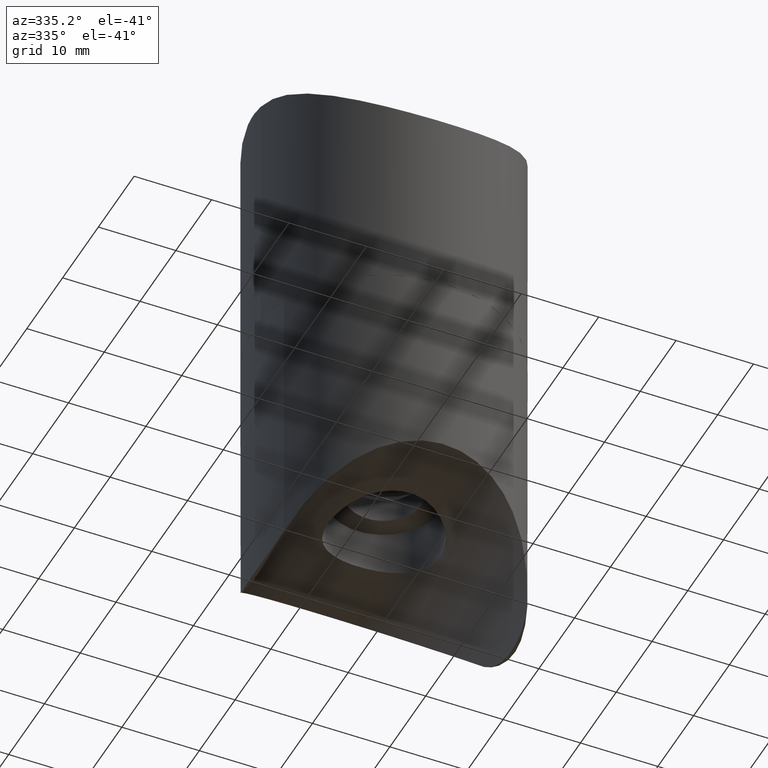
[diagram: clean part render]
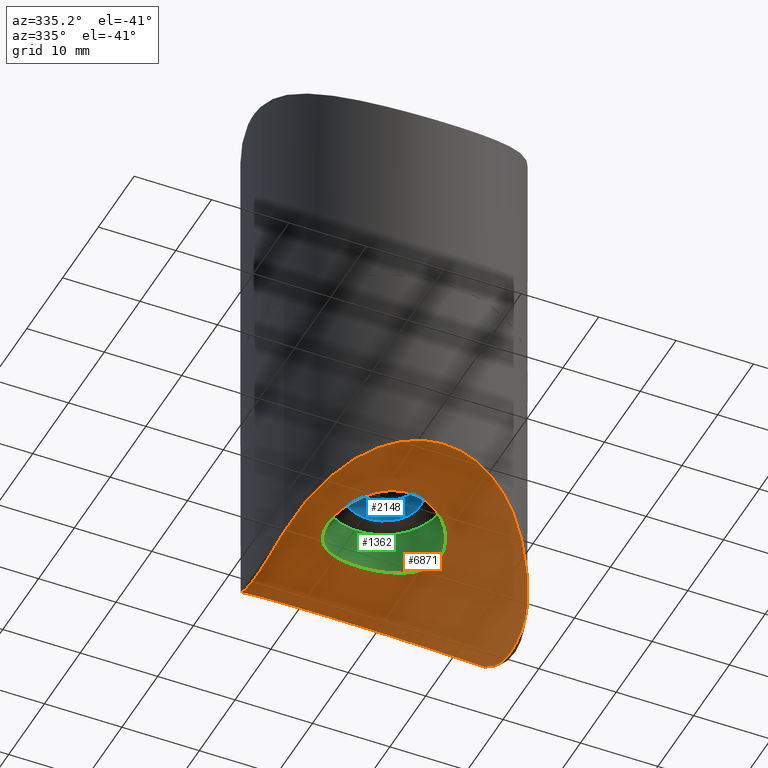
[diagram: same view with three faces highlighted in distinct colors, each labeled with its STEP entity id]
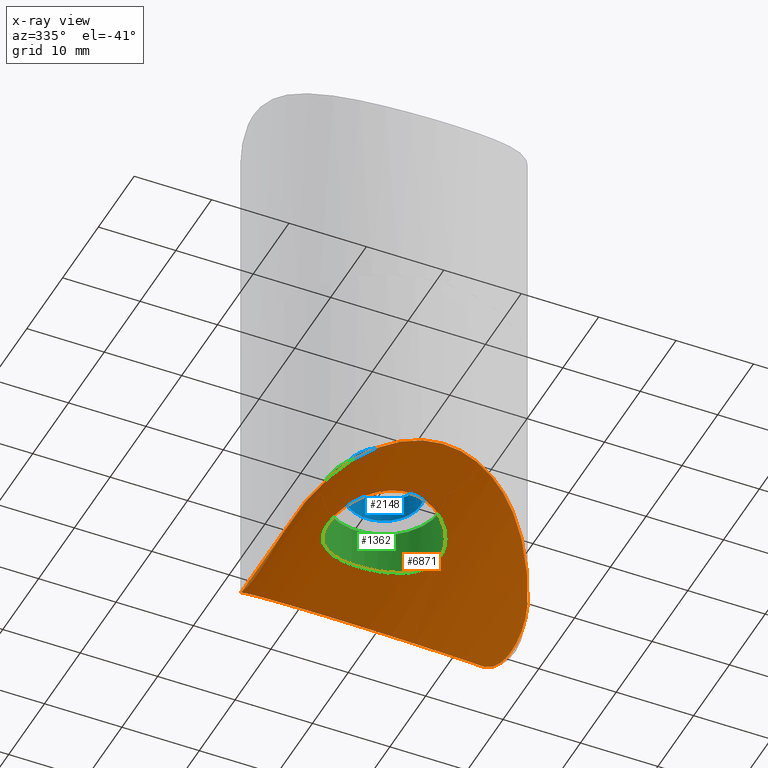
[diagram: x-ray of the same camera — body ghosted, the three highlighted faces saturated]
A machine part, auxiliary view with three faces highlighted in distinct colors.
The next image is the same camera in x-ray (body ghosted, the three faces saturated) — at least one of them is partly hidden behind the body in this view.
Their STEP definitions:

[orange] entity #6871 — the highlighted cylindrical surface (partial cylindrical patch) has radius 16.85 mm, axis along (0, -1, 0).
#34 = EDGE_LOOP ( 'NONE', ( #11539 ) ) ;
#48 = CARTESIAN_POINT ( 'NONE',  ( -4.796089520777968573, -5.457012219152863608, 25.69324742014698515 ) ) ;
#300 = CARTESIAN_POINT ( 'NONE',  ( -16.34617337419252081, -2.186723762992183406, 37.75917687425171465 ) ) ;
#396 = CARTESIAN_POINT ( 'NONE',  ( -16.34671092163666728, 2.177982999858383728, 37.76133432077322993 ) ) ;
#620 = EDGE_CURVE ( 'NONE', #7857, #10049, #14077, .T. ) ;
#860 = CARTESIAN_POINT ( 'NONE',  ( 3.649548190561970884, -6.282308658684769398, 25.39499595040027558 ) ) ;
#961 = CARTESIAN_POINT ( 'NONE',  ( 0.4712565622534001797, 7.250465984549375520, 24.99979950227553260 ) ) ;
#1007 = CARTESIAN_POINT ( 'NONE',  ( -6.275687458722897460, 3.637878653542161889, 26.21181409391473593 ) ) ;
#1050 = CARTESIAN_POINT ( 'NONE',  ( -6.495672709179138415, -3.228703092257241281, 26.30190133129487862 ) ) ;
#1102 = CARTESIAN_POINT ( 'NONE',  ( -6.271749419596720720, -3.644646323103835517, 26.21023352558124486 ) ) ;
#1144 = CARTESIAN_POINT ( 'NONE',  ( -7.009997843411294838, -1.911926243447772400, 26.52702400991228870 ) ) ;
#1455 = CARTESIAN_POINT ( 'NONE',  ( -16.39325967083188118, 1.096040324734796290, 37.95215670444287781 ) ) ;
#1542 = CARTESIAN_POINT ( 'NONE',  ( -16.14277968287617071, 4.237859515110637965, 37.01111241047244960 ) ) ;
#1804 = AXIS2_PLACEMENT_3D ( 'NONE', #7230, #13849, #8444 ) ;
#1849 = VERTEX_POINT ( 'NONE', #9237 ) ;
#1890 = B_SPLINE_CURVE_WITH_KNOTS ( 'NONE', 3,
 ( #7390, #3035, #9612, #4179, #4088, #7436, #10772, #2891, #11839, #4129, #11923, #6358, #14104, #7488, #9515, #860, #5494, #6536, #13121, #7769, #3217, #13221, #5546, #14284, #9888, #9938, #7725, #4412, #2149, #3256, #6588, #14192, #48, #2048, #2010, #4365, #1102, #1050, #11042, #6496, #1144, #12105, #7678, #9751, #12157, #7575, #9833, #11004, #8777, #10959, #13262, #1007, #5630, #8827, #8739, #4323, #6641, #9793, #2190, #3127, #3306, #12022, #10859, #4232, #2102, #11973, #5348, #961, #13081, #6459, #8689, #3175, #10911, #4271, #5398, #12059, #14244, #7624, #5449, #13169, #3496, #7969, #8967, #4655, #4610, #4567, #5737, #6789 ),
 .UNSPECIFIED., .T., .F.,
 ( 4, 2, 2, 2, 2, 2, 2, 2, 2, 2, 2, 2, 2, 2, 2, 2, 2, 2, 2, 2, 2, 2, 2, 2, 2, 2, 2, 2, 2, 2, 2, 2, 2, 2, 2, 2, 2, 2, 2, 2, 2, 2, 2, 4 ),
 ( 0.000000000000000000, 0.001433644577314001703, 0.002150466865971002988, 0.002867289154628002972, 0.004300933731942003374, 0.005017756020599004226, 0.005734578309256005077, 0.007168222886570008515, 0.008601867463884013687, 0.009318689752541015406, 0.01003551204119801539, 0.01146915661851201883, 0.01218597890716902055, 0.01290280119582602053, 0.01433644577314002223, 0.01577009035045402394, 0.01720373492776802737, 0.01863737950508203081, 0.01935420179373903080, 0.02007102408239603078, 0.02150466865971003075, 0.02293831323702403419, 0.02365513552568103417, 0.02437195781433803415, 0.02580560239165203065, 0.02652242468030903411, 0.02723924696896603409, 0.02795606925762303407, 0.02867289154628003406, 0.03010653612359403750, 0.03154018070090804093, 0.03297382527822204090, 0.03369064756687904089, 0.03440746985553604781, 0.03584111443285004084, 0.03727475901016404081, 0.03870840358747803384, 0.04014204816479203380, 0.04085887045344903379, 0.04157569274210603377, 0.04300933731942004068, 0.04444298189673404759, 0.04515980418539104757, 0.04587662647404804755 ),
 .UNSPECIFIED. ) ;
#2010 = CARTESIAN_POINT ( 'NONE',  ( -5.754487810619608901, -4.435106019776030806, 26.01057218544482197 ) ) ;
#2026 = CARTESIAN_POINT ( 'NONE',  ( 15.96868808927679240, 5.184551427105573929, 36.46444687707303700 ) ) ;
#2048 = CARTESIAN_POINT ( 'NONE',  ( -5.457786858323832035, -4.795207989275075633, 25.90460282002952397 ) ) ;
#2102 = CARTESIAN_POINT ( 'NONE',  ( -0.9659986221736255319, 7.189405491579163865, 25.02599706087747222 ) ) ;
#2149 = CARTESIAN_POINT ( 'NONE',  ( -2.349490466729712512, -6.875414876886437376, 25.15859798401249492 ) ) ;
#2164 = CARTESIAN_POINT ( 'NONE',  ( 15.79625609145370468, -5.834244477677396290, 35.98193947469485465 ) ) ;
#2190 = CARTESIAN_POINT ( 'NONE',  ( -4.437796910308075660, 5.752261843298133392, 25.58995173191253159 ) ) ;
#2249 = CARTESIAN_POINT ( 'NONE',  ( -15.73081969632409916, 6.038527277552182326, 35.81147272244751889 ) ) ;
#2427 = ORIENTED_EDGE ( 'NONE', *, *, #13161, .F. ) ;
#2453 = FACE_OUTER_BOUND ( 'NONE', #9223, .T. ) ;
#2458 = CARTESIAN_POINT ( 'NONE',  ( -15.85567318817836657, 5.621287676634283415, 36.14499305166327048 ) ) ;
#2707 = CARTESIAN_POINT ( 'NONE',  ( 9.163197427450773702, -23.14767939304750399, 18.70232060695236243 ) ) ;
#2891 = CARTESIAN_POINT ( 'NONE',  ( 6.506850746331284796, -3.232309269541051133, 26.30577292806481537 ) ) ;
#3035 = CARTESIAN_POINT ( 'NONE',  ( 7.250000000000000000, -0.4853044915254272618, 26.63947732653461031 ) ) ;
#3127 = CARTESIAN_POINT ( 'NONE',  ( -3.659509500026499662, 6.276188967057899859, 25.39730413224353711 ) ) ;
#3150 = CARTESIAN_POINT ( 'NONE',  ( 15.73081969632404409, 6.038527277552358186, 35.81147272244737678 ) ) ;
#3175 = CARTESIAN_POINT ( 'NONE',  ( 3.227097637635085281, 6.509461846557844211, 25.30596129321765986 ) ) ;
#3189 = CARTESIAN_POINT ( 'NONE',  ( 16.23403106582334843, 3.489175324651175636, 37.33466334103852091 ) ) ;
#3217 = CARTESIAN_POINT ( 'NONE',  ( 1.667678265546694849, -7.059650328721986057, 25.08107561895065274 ) ) ;
#3256 = CARTESIAN_POINT ( 'NONE',  ( -3.232678530711888154, -6.507013500803539685, 25.30694114652190407 ) ) ;
#3306 = CARTESIAN_POINT ( 'NONE',  ( -3.236524067846665353, 6.504761240615182238, 25.30781549788776275 ) ) ;
#3324 = CYLINDRICAL_SURFACE ( 'NONE', #1804, 16.84999999999991971 ) ;
#3483 = CARTESIAN_POINT ( 'NONE',  ( 7.250000000000000000, 0.000000000000000000, 26.63947732653462097 ) ) ;
#3496 = CARTESIAN_POINT ( 'NONE',  ( 6.505347094623084914, 3.235870692881694932, 26.30512370645515929 ) ) ;
#3648 = CARTESIAN_POINT ( 'NONE',  ( -16.09802337612861223, -4.482162366973217793, 36.87041027646467484 ) ) ;
#4088 = CARTESIAN_POINT ( 'NONE',  ( 7.002628067825626523, -1.892901412169223807, 26.52382576842777340 ) ) ;
#4129 = CARTESIAN_POINT ( 'NONE',  ( 5.890442141657539210, -4.233289882853278563, 26.06250676569466052 ) ) ;
#4147 = CARTESIAN_POINT ( 'NONE',  ( 16.40141839169812599, 0.5535371559063891889, 37.98779848673070347 ) ) ;
#4179 = CARTESIAN_POINT ( 'NONE',  ( 7.061034692050175643, -1.661628961916935543, 26.55075274866290513 ) ) ;
#4232 = CARTESIAN_POINT ( 'NONE',  ( -1.206220008662660881, 7.152956514648707298, 25.04158154498436417 ) ) ;
#4247 = CARTESIAN_POINT ( 'NONE',  ( 16.40426520276237810, 0.2756780713549813466, 37.99998920033139882 ) ) ;
#4271 = CARTESIAN_POINT ( 'NONE',  ( 4.431519699493742692, 5.757206800468973817, 25.58820458345207527 ) ) ;
#4323 = CARTESIAN_POINT ( 'NONE',  ( -5.456315597336299561, 4.779773658194063302, 25.90710032310381195 ) ) ;
#4329 = VERTEX_POINT ( 'NONE', #13818 ) ;
#4342 = CARTESIAN_POINT ( 'NONE',  ( 16.40427280154884571, -0.5502477362913487102, 38.00002157761129240 ) ) ;
#4365 = CARTESIAN_POINT ( 'NONE',  ( -6.148551095359947816, -3.848800887296427220, 26.16122709414393910 ) ) ;
#4412 = CARTESIAN_POINT ( 'NONE',  ( -1.892428574287349452, -7.014903934195329427, 25.10002499094510497 ) ) ;
#4567 = CARTESIAN_POINT ( 'NONE',  ( 7.237684138109775844, 0.4863419437966951531, 26.63358971400820252 ) ) ;
#4610 = CARTESIAN_POINT ( 'NONE',  ( 7.189398415431847766, 0.9659972016149133145, 26.61071641779482277 ) ) ;
#4627 = CARTESIAN_POINT ( 'NONE',  ( -15.73081969632409916, 6.038527277552182326, 35.81147272244751889 ) ) ;
#4655 = CARTESIAN_POINT ( 'NONE',  ( 7.153553893937991681, 1.202382867433838376, 26.59379261804080841 ) ) ;
#4773 = CARTESIAN_POINT ( 'NONE',  ( -16.31087275629818834, -2.714783333929912779, 37.61726458571324372 ) ) ;
#5321 = CARTESIAN_POINT ( 'NONE',  ( 16.39325967083187763, -1.096040324734795401, 37.95215670444287070 ) ) ;
#5348 = CARTESIAN_POINT ( 'NONE',  ( -0.2463010454514872882, 7.249761770579302045, 25.00010250223278518 ) ) ;
#5398 = CARTESIAN_POINT ( 'NONE',  ( 4.792961786844781358, 5.460023489855130308, 25.69226896290999207 ) ) ;
#5418 = CARTESIAN_POINT ( 'NONE',  ( 15.85567318817836657, -5.621287676634284303, 36.14499305166326337 ) ) ;
#5449 = CARTESIAN_POINT ( 'NONE',  ( 5.889366731775143471, 4.234684075643424528, 26.06211442045812277 ) ) ;
#5494 = CARTESIAN_POINT ( 'NONE',  ( 3.235647069445171109, -6.505055102152129898, 25.30769353588122783 ) ) ;
#5546 = CARTESIAN_POINT ( 'NONE',  ( 0.4891137974550371359, -7.249375180610590164, 25.00026883902154751 ) ) ;
#5630 = CARTESIAN_POINT ( 'NONE',  ( -6.154477086918458184, 3.839248637186954305, 26.16355981611122417 ) ) ;
#5737 = CARTESIAN_POINT ( 'NONE',  ( 7.250000000000005329, 0.2426522457627136586, 26.63947732653462808 ) ) ;
#5759 = CARTESIAN_POINT ( 'NONE',  ( -16.40426520276237810, -0.2756780713549795148, 37.99998920033139171 ) ) ;
#5807 = CARTESIAN_POINT ( 'NONE',  ( -16.38987835012895289, -1.104764068292364509, 37.93911602618955925 ) ) ;
#5850 = CARTESIAN_POINT ( 'NONE',  ( -16.31062374438883111, 2.717289763587819262, 37.61634901753014759 ) ) ;
#5892 = CARTESIAN_POINT ( 'NONE',  ( -16.20866886444277810, 3.744772514468985847, 37.24138836359229288 ) ) ;
#5937 = CARTESIAN_POINT ( 'NONE',  ( 15.73081969632404409, 6.038527277552358186, 35.81147272244737678 ) ) ;
#6358 = CARTESIAN_POINT ( 'NONE',  ( 5.450504586210820790, -4.786396852793730616, 25.90511090649448533 ) ) ;
#6379 = EDGE_CURVE ( 'NONE', #1849, #10049, #7471, .T. ) ;
#6425 = CARTESIAN_POINT ( 'NONE',  ( 16.01274988342849426, -4.945870762627916584, 36.60264272044926770 ) ) ;
#6459 = CARTESIAN_POINT ( 'NONE',  ( 1.896853463475635326, 7.014137210544922674, 25.10035122528823948 ) ) ;
#6496 = CARTESIAN_POINT ( 'NONE',  ( -6.869696446962266556, -2.364629918321219382, 26.46270023103839009 ) ) ;
#6536 = CARTESIAN_POINT ( 'NONE',  ( 2.582786677651947471, -6.778449412495069382, 25.19766032188088900 ) ) ;
#6537 = EDGE_CURVE ( 'NONE', #7857, #4329, #7277, .T. ) ;
#6588 = CARTESIAN_POINT ( 'NONE',  ( -3.647523231461770710, -6.283216967721328317, 25.39461716155350857 ) ) ;
#6641 = CARTESIAN_POINT ( 'NONE',  ( -5.297207865788604586, 4.955550704987950361, 25.85335772755153982 ) ) ;
#6678 = EDGE_CURVE ( 'NONE', #13434, #13434, #1890, .T. ) ;
#6789 = CARTESIAN_POINT ( 'NONE',  ( 7.250000000000004441, 5.421010862427522170E-17, 26.63947732653462097 ) ) ;
#6871 = ADVANCED_FACE ( 'NONE', ( #9388, #2453 ), #3324, .F. ) ;
#6951 = CARTESIAN_POINT ( 'NONE',  ( -16.13624633480248605, -4.241177966405510702, 36.99627346544411921 ) ) ;
#6977 =( BOUNDED_CURVE ( )  B_SPLINE_CURVE ( 3, ( #7161, #2707, #10463, #11608 ),
 .UNSPECIFIED., .F., .T. ) 
 B_SPLINE_CURVE_WITH_KNOTS ( ( 4, 4 ),
 ( 5.078909860511432228, 7.487460753847730466 ),
 .UNSPECIFIED. ) 
 CURVE ( )  GEOMETRIC_REPRESENTATION_ITEM ( )  RATIONAL_B_SPLINE_CURVE ( ( 1.000000000000000000, 0.5722463809120582612, 0.5722463809120582612, 1.000000000000000000 ) ) 
 REPRESENTATION_ITEM ( '' )  );
#7118 = CARTESIAN_POINT ( 'NONE',  ( -15.73081969632409916, 6.038527277552182326, 35.81147272244751889 ) ) ;
#7161 = CARTESIAN_POINT ( 'NONE',  ( 15.73081969632409916, -6.038527277552182326, 35.81147272244751889 ) ) ;
#7230 = CARTESIAN_POINT ( 'NONE',  ( 0.000000000000000000, -16.85000000000000142, 41.84999999999971010 ) ) ;
#7277 = B_SPLINE_CURVE_WITH_KNOTS ( 'NONE', 3,
 ( #4627, #9084, #2458, #9224, #10249, #1542, #5892, #5850, #396, #1455, #10299, #5759, #9274, #5807, #12471, #300, #4773, #13581, #11457, #6951, #3648, #11403, #8129, #13623 ),
 .UNSPECIFIED., .F., .F.,
 ( 4, 2, 2, 2, 2, 2, 2, 2, 2, 2, 2, 4 ),
 ( 0.001766015150703498411, 0.002587557519209144740, 0.003409099887714791069, 0.005052184624726084594, 0.006695269361737378987, 0.008338354098748673379, 0.009159896467254319274, 0.009981438835759966904, 0.01162452357277126563, 0.01244606594127691326, 0.01326760830978256089, 0.01491069304679385268 ),
 .UNSPECIFIED. ) ;
#7390 = CARTESIAN_POINT ( 'NONE',  ( 7.250000000000004441, 5.421010862427522170E-17, 26.63947732653462097 ) ) ;
#7436 = CARTESIAN_POINT ( 'NONE',  ( 6.862414628211297440, -2.350987257090756621, 26.46053341069550413 ) ) ;
#7471 = B_SPLINE_CURVE_WITH_KNOTS ( 'NONE', 3,
 ( #8755, #2164, #5418, #10977, #6425, #10790, #14119, #10834, #11942, #5321, #4342, #4247, #4147, #12075, #14214, #13055, #9808, #3189, #7548, #8656, #13139, #2026, #9768, #3150 ),
 .UNSPECIFIED., .F., .F.,
 ( 4, 2, 2, 2, 2, 2, 2, 2, 2, 2, 2, 4 ),
 ( 0.001766015150703499062, 0.002587557519209145174, 0.003409099887714791069, 0.005052184624726084594, 0.006695269361737378119, 0.008338354098748671644, 0.009159896467254319274, 0.009981438835759965170, 0.01162452357277126216, 0.01244606594127691326, 0.01326760830978256089, 0.01491069304679385615 ),
 .UNSPECIFIED. ) ;
#7488 = CARTESIAN_POINT ( 'NONE',  ( 4.798716551207513170, -5.454592940747837737, 25.69404991863361332 ) ) ;
#7548 = CARTESIAN_POINT ( 'NONE',  ( 16.20421094236549564, 3.745248190246713627, 37.22824115893082819 ) ) ;
#7575 = CARTESIAN_POINT ( 'NONE',  ( -7.191940080276159719, 0.9468381257532892947, 26.61191699662429855 ) ) ;
#7624 = CARTESIAN_POINT ( 'NONE',  ( 5.749804130066628716, 4.422363044895895712, 26.01058075090426414 ) ) ;
#7678 = CARTESIAN_POINT ( 'NONE',  ( -7.249288605716513345, -0.4883933574990095283, 26.63913824537070951 ) ) ;
#7725 = CARTESIAN_POINT ( 'NONE',  ( -1.190670664119233946, -7.155537656130248614, 25.04048140047435211 ) ) ;
#7769 = CARTESIAN_POINT ( 'NONE',  ( 1.902486007411004820, -7.000019624702955134, 25.10615994419447361 ) ) ;
#7857 = VERTEX_POINT ( 'NONE', #2249 ) ;
#7969 = CARTESIAN_POINT ( 'NONE',  ( 6.873482217415704199, 2.354918718223999896, 26.46435857658174839 ) ) ;
#8129 = CARTESIAN_POINT ( 'NONE',  ( -15.86311505403909727, -5.625520631465763088, 36.15611212262240315 ) ) ;
#8444 = DIRECTION ( 'NONE',  ( 0.000000000000000000, 0.000000000000000000, 1.000000000000000000 ) ) ;
#8491 = ORIENTED_EDGE ( 'NONE', *, *, #620, .F. ) ;
#8656 = CARTESIAN_POINT ( 'NONE',  ( 16.13624633480248605, 4.241177966405514255, 36.99627346544411211 ) ) ;
#8689 = CARTESIAN_POINT ( 'NONE',  ( 2.351928688558251324, 6.874276990241148688, 25.15905013672741219 ) ) ;
#8739 = CARTESIAN_POINT ( 'NONE',  ( -5.754116119224454096, 4.416759423806386309, 26.01214731436760630 ) ) ;
#8755 = CARTESIAN_POINT ( 'NONE',  ( 15.73081969632409916, -6.038527277552182326, 35.81147272244751889 ) ) ;
#8777 = CARTESIAN_POINT ( 'NONE',  ( -6.876300369115805111, 2.346299778860035712, 26.46563705559827184 ) ) ;
#8827 = CARTESIAN_POINT ( 'NONE',  ( -5.893691763477000300, 4.228689597105658393, 26.06372775943451359 ) ) ;
#8967 = CARTESIAN_POINT ( 'NONE',  ( 7.012290045199205402, 1.901714966943119922, 26.52808509678839499 ) ) ;
#9084 = CARTESIAN_POINT ( 'NONE',  ( -15.79625609145370468, 5.834244477677395402, 35.98193947469485465 ) ) ;
#9223 = EDGE_LOOP ( 'NONE', ( #2427, #10042, #8491, #12696 ) ) ;
#9224 = CARTESIAN_POINT ( 'NONE',  ( -15.96386898038981705, 5.177536332972147548, 36.45515396810657904 ) ) ;
#9237 = CARTESIAN_POINT ( 'NONE',  ( 15.73081969632409916, -6.038527277552182326, 35.81147272244751889 ) ) ;
#9274 = CARTESIAN_POINT ( 'NONE',  ( -16.40141839169812599, -0.5535371559063874125, 37.98779848673070347 ) ) ;
#9388 = FACE_BOUND ( 'NONE', #34, .T. ) ;
#9515 = CARTESIAN_POINT ( 'NONE',  ( 4.435496818888712056, -5.754387200028158844, 25.58922731733804667 ) ) ;
#9612 = CARTESIAN_POINT ( 'NONE',  ( 7.201777549590147487, -0.9611384103698799031, 26.61623455459156418 ) ) ;
#9751 = CARTESIAN_POINT ( 'NONE',  ( -7.250343904083243807, 0.2281810962328690295, 26.63964124603290173 ) ) ;
#9768 = CARTESIAN_POINT ( 'NONE',  ( 15.86311505403909727, 5.625520631465763088, 36.15611212262238183 ) ) ;
#9793 = CARTESIAN_POINT ( 'NONE',  ( -4.798364704034526085, 5.455251783317844883, 25.69388360925564641 ) ) ;
#9808 = CARTESIAN_POINT ( 'NONE',  ( 16.31087275629818834, 2.714783333929914111, 37.61726458571323661 ) ) ;
#9833 = CARTESIAN_POINT ( 'NONE',  ( -7.156127446319827889, 1.187333714639678517, 26.59499988546775029 ) ) ;
#9888 = CARTESIAN_POINT ( 'NONE',  ( -0.4731811929526857918, -7.238568785239262837, 25.00492898829811494 ) ) ;
#9938 = CARTESIAN_POINT ( 'NONE',  ( -0.9536567279642917949, -7.191058151983809488, 25.02529029445525310 ) ) ;
#10042 = ORIENTED_EDGE ( 'NONE', *, *, #6379, .T. ) ;
#10049 = VERTEX_POINT ( 'NONE', #5937 ) ;
#10249 = CARTESIAN_POINT ( 'NONE',  ( -16.01274988342849070, 4.945870762627914807, 36.60264272044926059 ) ) ;
#10299 = CARTESIAN_POINT ( 'NONE',  ( -16.40427280154884215, 0.5502477362913503756, 38.00002157761129951 ) ) ;
#10463 = CARTESIAN_POINT ( 'NONE',  ( -9.163197427450540999, -23.14767939304759281, 18.70232060695226650 ) ) ;
#10772 = CARTESIAN_POINT ( 'NONE',  ( 6.780822339225344386, -2.576636541328786834, 26.42427963177738448 ) ) ;
#10790 = CARTESIAN_POINT ( 'NONE',  ( 16.14277968287616716, -4.237859515110637965, 37.01111241047244960 ) ) ;
#10834 = CARTESIAN_POINT ( 'NONE',  ( 16.31062374438884532, -2.717289763587819262, 37.61634901753014049 ) ) ;
#10859 = CARTESIAN_POINT ( 'NONE',  ( -1.909735483059638916, 7.010308468516690539, 25.10195530643808937 ) ) ;
#10911 = CARTESIAN_POINT ( 'NONE',  ( 3.650371492537209495, 6.281606876973357068, 25.39523944315409665 ) ) ;
#10959 = CARTESIAN_POINT ( 'NONE',  ( -6.602263208937950267, 3.004854884108316693, 26.34701551272281250 ) ) ;
#10977 = CARTESIAN_POINT ( 'NONE',  ( 15.96386898038981705, -5.177536332972147548, 36.45515396810658615 ) ) ;
#11004 = CARTESIAN_POINT ( 'NONE',  ( -7.015097046224491706, 1.892247061992765600, 26.52937117734947492 ) ) ;
#11042 = CARTESIAN_POINT ( 'NONE',  ( -6.597024996629197169, -3.016154368538851660, 26.34478903538621708 ) ) ;
#11403 = CARTESIAN_POINT ( 'NONE',  ( -15.96868808927679950, -5.184551427105566823, 36.46444687707303700 ) ) ;
#11457 = CARTESIAN_POINT ( 'NONE',  ( -16.20421094236548853, -3.745248190246711850, 37.22824115893083530 ) ) ;
#11522 = CARTESIAN_POINT ( 'NONE',  ( 9.163197427450526789, 23.14767939304759281, 18.70232060695227361 ) ) ;
#11539 = ORIENTED_EDGE ( 'NONE', *, *, #6678, .T. ) ;
#11608 = CARTESIAN_POINT ( 'NONE',  ( -15.73081969632404409, -6.038527277552353745, 35.81147272244738389 ) ) ;
#11839 = CARTESIAN_POINT ( 'NONE',  ( 6.284216989755244676, -3.646001131596585232, 26.21318057226950771 ) ) ;
#11923 = CARTESIAN_POINT ( 'NONE',  ( 5.748691130923720749, -4.423815701176743609, 26.01017554611999572 ) ) ;
#11942 = CARTESIAN_POINT ( 'NONE',  ( 16.34671092163667083, -2.177982999858383728, 37.76133432077324414 ) ) ;
#11973 = CARTESIAN_POINT ( 'NONE',  ( -0.4859107974962013077, 7.237720314938024480, 25.00529403846652698 ) ) ;
#12022 = CARTESIAN_POINT ( 'NONE',  ( -2.362376490325233558, 6.870675669620778692, 25.16053825129068500 ) ) ;
#12059 = CARTESIAN_POINT ( 'NONE',  ( 5.292577952168055155, 4.960501831488988600, 25.85182253006594166 ) ) ;
#12075 = CARTESIAN_POINT ( 'NONE',  ( 16.38987835012895289, 1.104764068292366286, 37.93911602618955925 ) ) ;
#12105 = CARTESIAN_POINT ( 'NONE',  ( -7.201599023381047182, -0.9656620689726130857, 26.61613527485972952 ) ) ;
#12157 = CARTESIAN_POINT ( 'NONE',  ( -7.238922090878896043, 0.4674521546085592671, 26.63417985456468173 ) ) ;
#12471 = CARTESIAN_POINT ( 'NONE',  ( -16.38123230390090512, -1.377419225363367028, 37.90282915723620505 ) ) ;
#12631 = CARTESIAN_POINT ( 'NONE',  ( 15.73081969632404409, 6.038527277552358186, 35.81147272244737678 ) ) ;
#12686 = CARTESIAN_POINT ( 'NONE',  ( -9.163197427450777255, 23.14767939304749333, 18.70232060695237308 ) ) ;
#12696 = ORIENTED_EDGE ( 'NONE', *, *, #6537, .T. ) ;
#13055 = CARTESIAN_POINT ( 'NONE',  ( 16.34617337419252081, 2.186723762992185183, 37.75917687425170044 ) ) ;
#13081 = CARTESIAN_POINT ( 'NONE',  ( 0.9488585482521181280, 7.203876826102686870, 25.02001323252120102 ) ) ;
#13121 = CARTESIAN_POINT ( 'NONE',  ( 2.359795026674007534, -6.859380087639535439, 25.16446733679510572 ) ) ;
#13139 = CARTESIAN_POINT ( 'NONE',  ( 16.09802337612860867, 4.482162366973224898, 36.87041027646467484 ) ) ;
#13161 = EDGE_CURVE ( 'NONE', #1849, #4329, #6977, .T. ) ;
#13169 = CARTESIAN_POINT ( 'NONE',  ( 6.280362781856505094, 3.652164045557506178, 26.21166793982078858 ) ) ;
#13221 = CARTESIAN_POINT ( 'NONE',  ( 0.9636397916963072019, -7.201607639733264676, 25.02098335817737151 ) ) ;
#13262 = CARTESIAN_POINT ( 'NONE',  ( -6.499399634962057526, 3.221213833716203290, 26.30345968075500096 ) ) ;
#13434 = VERTEX_POINT ( 'NONE', #3483 ) ;
#13581 = CARTESIAN_POINT ( 'NONE',  ( -16.23403106582334487, -3.489175324651173415, 37.33466334103850670 ) ) ;
#13623 = CARTESIAN_POINT ( 'NONE',  ( -15.73081969632404409, -6.038527277552353745, 35.81147272244738389 ) ) ;
#13818 = CARTESIAN_POINT ( 'NONE',  ( -15.73081969632404409, -6.038527277552353745, 35.81147272244738389 ) ) ;
#13849 = DIRECTION ( 'NONE',  ( 0.000000000000000000, 1.000000000000000000, 0.000000000000000000 ) ) ;
#14077 =( BOUNDED_CURVE ( )  B_SPLINE_CURVE ( 3, ( #7118, #12686, #11522, #12631 ),
 .UNSPECIFIED., .F., .T. ) 
 B_SPLINE_CURVE_WITH_KNOTS ( ( 4, 4 ),
 ( 5.078909860511432228, 7.487460753847729578 ),
 .UNSPECIFIED. ) 
 CURVE ( )  GEOMETRIC_REPRESENTATION_ITEM ( )  RATIONAL_B_SPLINE_CURVE ( ( 1.000000000000000000, 0.5722463809120585942, 0.5722463809120585942, 1.000000000000000000 ) ) 
 REPRESENTATION_ITEM ( '' )  );
#14104 = CARTESIAN_POINT ( 'NONE',  ( 5.293479903980673029, -4.959436629111723782, 25.85213931805979826 ) ) ;
#14119 = CARTESIAN_POINT ( 'NONE',  ( 16.20866886444278165, -3.744772514468985403, 37.24138836359229288 ) ) ;
#14192 = CARTESIAN_POINT ( 'NONE',  ( -4.427968128431357009, -5.759890575445904659, 25.58724659421139691 ) ) ;
#14214 = CARTESIAN_POINT ( 'NONE',  ( 16.38123230390089802, 1.377419225363367472, 37.90282915723619084 ) ) ;
#14244 = CARTESIAN_POINT ( 'NONE',  ( 5.451857114951225824, 4.784850722138352275, 25.90557452647128756 ) ) ;
#14284 = CARTESIAN_POINT ( 'NONE',  ( -0.2305305415976622307, -7.250303364233751324, 24.99986947245139035 ) ) ;

[blue] entity #2148 — the highlighted cylindrical surface (bore or boss wall) has radius 4.75 mm, axis along (0, 0, 1).
#270 = CARTESIAN_POINT ( 'NONE',  ( -4.750000000000000000, 0.000000000000000000, 16.37499999999985434 ) ) ;
#666 = CARTESIAN_POINT ( 'NONE',  ( 0.000000000000000000, 0.000000000000000000, 16.37499999999985434 ) ) ;
#701 = CARTESIAN_POINT ( 'NONE',  ( 0.000000000000000000, 0.000000000000000000, 19.49999999999985434 ) ) ;
#929 = DIRECTION ( 'NONE',  ( -1.000000000000000000, 0.000000000000000000, 0.000000000000000000 ) ) ;
#1811 = DIRECTION ( 'NONE',  ( -1.000000000000000000, 0.000000000000000000, 0.000000000000000000 ) ) ;
#2148 = ADVANCED_FACE ( 'NONE', ( #2637, #11472 ), #8363, .F. ) ;
#2637 = FACE_OUTER_BOUND ( 'NONE', #6387, .T. ) ;
#2672 = DIRECTION ( 'NONE',  ( 1.000000000000000000, 0.000000000000000000, 0.000000000000000000 ) ) ;
#2837 = DIRECTION ( 'NONE',  ( 0.000000000000000000, 0.000000000000000000, -1.000000000000000000 ) ) ;
#2919 = AXIS2_PLACEMENT_3D ( 'NONE', #701, #11568, #2672 ) ;
#3084 = AXIS2_PLACEMENT_3D ( 'NONE', #666, #2837, #1811 ) ;
#4640 = CARTESIAN_POINT ( 'NONE',  ( 4.750000000000000000, 0.000000000000000000, 19.49999999999985434 ) ) ;
#4998 = ORIENTED_EDGE ( 'NONE', *, *, #6010, .T. ) ;
#5561 = CARTESIAN_POINT ( 'NONE',  ( 0.000000000000000000, 0.000000000000000000, 37.99999999999970868 ) ) ;
#5765 = AXIS2_PLACEMENT_3D ( 'NONE', #5561, #11059, #929 ) ;
#5947 = ORIENTED_EDGE ( 'NONE', *, *, #9226, .F. ) ;
#6010 = EDGE_CURVE ( 'NONE', #11189, #11189, #8559, .T. ) ;
#6387 = EDGE_LOOP ( 'NONE', ( #4998 ) ) ;
#8363 = CYLINDRICAL_SURFACE ( 'NONE', #5765, 4.750000000000000000 ) ;
#8559 = CIRCLE ( 'NONE', #3084, 4.750000000000000000 ) ;
#9226 = EDGE_CURVE ( 'NONE', #11705, #11705, #10044, .T. ) ;
#9853 = EDGE_LOOP ( 'NONE', ( #5947 ) ) ;
#10044 = CIRCLE ( 'NONE', #2919, 4.750000000000000000 ) ;
#11059 = DIRECTION ( 'NONE',  ( 0.000000000000000000, 0.000000000000000000, -1.000000000000000000 ) ) ;
#11189 = VERTEX_POINT ( 'NONE', #270 ) ;
#11472 = FACE_OUTER_BOUND ( 'NONE', #9853, .T. ) ;
#11568 = DIRECTION ( 'NONE',  ( -0.000000000000000000, -0.000000000000000000, -1.000000000000000000 ) ) ;
#11705 = VERTEX_POINT ( 'NONE', #4640 ) ;

[green] entity #1362 — the highlighted cylindrical surface (bore or boss wall) has radius 7.25 mm, axis along (0, 0, -1).
#48 = CARTESIAN_POINT ( 'NONE',  ( -4.796089520777968573, -5.457012219152863608, 25.69324742014698515 ) ) ;
#860 = CARTESIAN_POINT ( 'NONE',  ( 3.649548190561970884, -6.282308658684769398, 25.39499595040027558 ) ) ;
#961 = CARTESIAN_POINT ( 'NONE',  ( 0.4712565622534001797, 7.250465984549375520, 24.99979950227553260 ) ) ;
#1007 = CARTESIAN_POINT ( 'NONE',  ( -6.275687458722897460, 3.637878653542161889, 26.21181409391473593 ) ) ;
#1050 = CARTESIAN_POINT ( 'NONE',  ( -6.495672709179138415, -3.228703092257241281, 26.30190133129487862 ) ) ;
#1102 = CARTESIAN_POINT ( 'NONE',  ( -6.271749419596720720, -3.644646323103835517, 26.21023352558124486 ) ) ;
#1144 = CARTESIAN_POINT ( 'NONE',  ( -7.009997843411294838, -1.911926243447772400, 26.52702400991228870 ) ) ;
#1344 = ORIENTED_EDGE ( 'NONE', *, *, #6678, .F. ) ;
#1362 = ADVANCED_FACE ( 'NONE', ( #3854, #10263 ), #9212, .F. ) ;
#1890 = B_SPLINE_CURVE_WITH_KNOTS ( 'NONE', 3,
 ( #7390, #3035, #9612, #4179, #4088, #7436, #10772, #2891, #11839, #4129, #11923, #6358, #14104, #7488, #9515, #860, #5494, #6536, #13121, #7769, #3217, #13221, #5546, #14284, #9888, #9938, #7725, #4412, #2149, #3256, #6588, #14192, #48, #2048, #2010, #4365, #1102, #1050, #11042, #6496, #1144, #12105, #7678, #9751, #12157, #7575, #9833, #11004, #8777, #10959, #13262, #1007, #5630, #8827, #8739, #4323, #6641, #9793, #2190, #3127, #3306, #12022, #10859, #4232, #2102, #11973, #5348, #961, #13081, #6459, #8689, #3175, #10911, #4271, #5398, #12059, #14244, #7624, #5449, #13169, #3496, #7969, #8967, #4655, #4610, #4567, #5737, #6789 ),
 .UNSPECIFIED., .T., .F.,
 ( 4, 2, 2, 2, 2, 2, 2, 2, 2, 2, 2, 2, 2, 2, 2, 2, 2, 2, 2, 2, 2, 2, 2, 2, 2, 2, 2, 2, 2, 2, 2, 2, 2, 2, 2, 2, 2, 2, 2, 2, 2, 2, 2, 4 ),
 ( 0.000000000000000000, 0.001433644577314001703, 0.002150466865971002988, 0.002867289154628002972, 0.004300933731942003374, 0.005017756020599004226, 0.005734578309256005077, 0.007168222886570008515, 0.008601867463884013687, 0.009318689752541015406, 0.01003551204119801539, 0.01146915661851201883, 0.01218597890716902055, 0.01290280119582602053, 0.01433644577314002223, 0.01577009035045402394, 0.01720373492776802737, 0.01863737950508203081, 0.01935420179373903080, 0.02007102408239603078, 0.02150466865971003075, 0.02293831323702403419, 0.02365513552568103417, 0.02437195781433803415, 0.02580560239165203065, 0.02652242468030903411, 0.02723924696896603409, 0.02795606925762303407, 0.02867289154628003406, 0.03010653612359403750, 0.03154018070090804093, 0.03297382527822204090, 0.03369064756687904089, 0.03440746985553604781, 0.03584111443285004084, 0.03727475901016404081, 0.03870840358747803384, 0.04014204816479203380, 0.04085887045344903379, 0.04157569274210603377, 0.04300933731942004068, 0.04444298189673404759, 0.04515980418539104757, 0.04587662647404804755 ),
 .UNSPECIFIED. ) ;
#1927 = DIRECTION ( 'NONE',  ( 1.000000000000000000, 0.000000000000000000, 0.000000000000000000 ) ) ;
#2010 = CARTESIAN_POINT ( 'NONE',  ( -5.754487810619608901, -4.435106019776030806, 26.01057218544482197 ) ) ;
#2048 = CARTESIAN_POINT ( 'NONE',  ( -5.457786858323832035, -4.795207989275075633, 25.90460282002952397 ) ) ;
#2102 = CARTESIAN_POINT ( 'NONE',  ( -0.9659986221736255319, 7.189405491579163865, 25.02599706087747222 ) ) ;
#2149 = CARTESIAN_POINT ( 'NONE',  ( -2.349490466729712512, -6.875414876886437376, 25.15859798401249492 ) ) ;
#2190 = CARTESIAN_POINT ( 'NONE',  ( -4.437796910308075660, 5.752261843298133392, 25.58995173191253159 ) ) ;
#2326 = DIRECTION ( 'NONE',  ( 1.000000000000000000, 0.000000000000000000, 0.000000000000000000 ) ) ;
#2664 = EDGE_LOOP ( 'NONE', ( #1344 ) ) ;
#2891 = CARTESIAN_POINT ( 'NONE',  ( 6.506850746331284796, -3.232309269541051133, 26.30577292806481537 ) ) ;
#3035 = CARTESIAN_POINT ( 'NONE',  ( 7.250000000000000000, -0.4853044915254272618, 26.63947732653461031 ) ) ;
#3127 = CARTESIAN_POINT ( 'NONE',  ( -3.659509500026499662, 6.276188967057899859, 25.39730413224353711 ) ) ;
#3175 = CARTESIAN_POINT ( 'NONE',  ( 3.227097637635085281, 6.509461846557844211, 25.30596129321765986 ) ) ;
#3217 = CARTESIAN_POINT ( 'NONE',  ( 1.667678265546694849, -7.059650328721986057, 25.08107561895065274 ) ) ;
#3256 = CARTESIAN_POINT ( 'NONE',  ( -3.232678530711888154, -6.507013500803539685, 25.30694114652190407 ) ) ;
#3306 = CARTESIAN_POINT ( 'NONE',  ( -3.236524067846665353, 6.504761240615182238, 25.30781549788776275 ) ) ;
#3483 = CARTESIAN_POINT ( 'NONE',  ( 7.250000000000000000, 0.000000000000000000, 26.63947732653462097 ) ) ;
#3496 = CARTESIAN_POINT ( 'NONE',  ( 6.505347094623084914, 3.235870692881694932, 26.30512370645515929 ) ) ;
#3771 = CIRCLE ( 'NONE', #11526, 7.250000000000000000 ) ;
#3854 = FACE_OUTER_BOUND ( 'NONE', #6730, .T. ) ;
#4088 = CARTESIAN_POINT ( 'NONE',  ( 7.002628067825626523, -1.892901412169223807, 26.52382576842777340 ) ) ;
#4129 = CARTESIAN_POINT ( 'NONE',  ( 5.890442141657539210, -4.233289882853278563, 26.06250676569466052 ) ) ;
#4179 = CARTESIAN_POINT ( 'NONE',  ( 7.061034692050175643, -1.661628961916935543, 26.55075274866290513 ) ) ;
#4232 = CARTESIAN_POINT ( 'NONE',  ( -1.206220008662660881, 7.152956514648707298, 25.04158154498436417 ) ) ;
#4271 = CARTESIAN_POINT ( 'NONE',  ( 4.431519699493742692, 5.757206800468973817, 25.58820458345207527 ) ) ;
#4323 = CARTESIAN_POINT ( 'NONE',  ( -5.456315597336299561, 4.779773658194063302, 25.90710032310381195 ) ) ;
#4365 = CARTESIAN_POINT ( 'NONE',  ( -6.148551095359947816, -3.848800887296427220, 26.16122709414393910 ) ) ;
#4412 = CARTESIAN_POINT ( 'NONE',  ( -1.892428574287349452, -7.014903934195329427, 25.10002499094510497 ) ) ;
#4567 = CARTESIAN_POINT ( 'NONE',  ( 7.237684138109775844, 0.4863419437966951531, 26.63358971400820252 ) ) ;
#4610 = CARTESIAN_POINT ( 'NONE',  ( 7.189398415431847766, 0.9659972016149133145, 26.61071641779482277 ) ) ;
#4655 = CARTESIAN_POINT ( 'NONE',  ( 7.153553893937991681, 1.202382867433838376, 26.59379261804080841 ) ) ;
#5177 = EDGE_CURVE ( 'NONE', #8759, #8759, #3771, .T. ) ;
#5348 = CARTESIAN_POINT ( 'NONE',  ( -0.2463010454514872882, 7.249761770579302045, 25.00010250223278518 ) ) ;
#5398 = CARTESIAN_POINT ( 'NONE',  ( 4.792961786844781358, 5.460023489855130308, 25.69226896290999207 ) ) ;
#5449 = CARTESIAN_POINT ( 'NONE',  ( 5.889366731775143471, 4.234684075643424528, 26.06211442045812277 ) ) ;
#5494 = CARTESIAN_POINT ( 'NONE',  ( 3.235647069445171109, -6.505055102152129898, 25.30769353588122783 ) ) ;
#5546 = CARTESIAN_POINT ( 'NONE',  ( 0.4891137974550371359, -7.249375180610590164, 25.00026883902154751 ) ) ;
#5630 = CARTESIAN_POINT ( 'NONE',  ( -6.154477086918458184, 3.839248637186954305, 26.16355981611122417 ) ) ;
#5723 = DIRECTION ( 'NONE',  ( 0.000000000000000000, 0.000000000000000000, 1.000000000000000000 ) ) ;
#5737 = CARTESIAN_POINT ( 'NONE',  ( 7.250000000000005329, 0.2426522457627136586, 26.63947732653462808 ) ) ;
#6358 = CARTESIAN_POINT ( 'NONE',  ( 5.450504586210820790, -4.786396852793730616, 25.90511090649448533 ) ) ;
#6459 = CARTESIAN_POINT ( 'NONE',  ( 1.896853463475635326, 7.014137210544922674, 25.10035122528823948 ) ) ;
#6496 = CARTESIAN_POINT ( 'NONE',  ( -6.869696446962266556, -2.364629918321219382, 26.46270023103839009 ) ) ;
#6536 = CARTESIAN_POINT ( 'NONE',  ( 2.582786677651947471, -6.778449412495069382, 25.19766032188088900 ) ) ;
#6588 = CARTESIAN_POINT ( 'NONE',  ( -3.647523231461770710, -6.283216967721328317, 25.39461716155350857 ) ) ;
#6641 = CARTESIAN_POINT ( 'NONE',  ( -5.297207865788604586, 4.955550704987950361, 25.85335772755153982 ) ) ;
#6678 = EDGE_CURVE ( 'NONE', #13434, #13434, #1890, .T. ) ;
#6730 = EDGE_LOOP ( 'NONE', ( #6756 ) ) ;
#6756 = ORIENTED_EDGE ( 'NONE', *, *, #5177, .F. ) ;
#6789 = CARTESIAN_POINT ( 'NONE',  ( 7.250000000000004441, 5.421010862427522170E-17, 26.63947732653462097 ) ) ;
#7390 = CARTESIAN_POINT ( 'NONE',  ( 7.250000000000004441, 5.421010862427522170E-17, 26.63947732653462097 ) ) ;
#7436 = CARTESIAN_POINT ( 'NONE',  ( 6.862414628211297440, -2.350987257090756621, 26.46053341069550413 ) ) ;
#7488 = CARTESIAN_POINT ( 'NONE',  ( 4.798716551207513170, -5.454592940747837737, 25.69404991863361332 ) ) ;
#7575 = CARTESIAN_POINT ( 'NONE',  ( -7.191940080276159719, 0.9468381257532892947, 26.61191699662429855 ) ) ;
#7624 = CARTESIAN_POINT ( 'NONE',  ( 5.749804130066628716, 4.422363044895895712, 26.01058075090426414 ) ) ;
#7678 = CARTESIAN_POINT ( 'NONE',  ( -7.249288605716513345, -0.4883933574990095283, 26.63913824537070951 ) ) ;
#7725 = CARTESIAN_POINT ( 'NONE',  ( -1.190670664119233946, -7.155537656130248614, 25.04048140047435211 ) ) ;
#7769 = CARTESIAN_POINT ( 'NONE',  ( 1.902486007411004820, -7.000019624702955134, 25.10615994419447361 ) ) ;
#7969 = CARTESIAN_POINT ( 'NONE',  ( 6.873482217415704199, 2.354918718223999896, 26.46435857658174839 ) ) ;
#8689 = CARTESIAN_POINT ( 'NONE',  ( 2.351928688558251324, 6.874276990241148688, 25.15905013672741219 ) ) ;
#8739 = CARTESIAN_POINT ( 'NONE',  ( -5.754116119224454096, 4.416759423806386309, 26.01214731436760630 ) ) ;
#8759 = VERTEX_POINT ( 'NONE', #9055 ) ;
#8777 = CARTESIAN_POINT ( 'NONE',  ( -6.876300369115805111, 2.346299778860035712, 26.46563705559827184 ) ) ;
#8827 = CARTESIAN_POINT ( 'NONE',  ( -5.893691763477000300, 4.228689597105658393, 26.06372775943451359 ) ) ;
#8957 = CARTESIAN_POINT ( 'NONE',  ( 0.000000000000000000, 0.000000000000000000, 19.49999999999985434 ) ) ;
#8967 = CARTESIAN_POINT ( 'NONE',  ( 7.012290045199205402, 1.901714966943119922, 26.52808509678839499 ) ) ;
#9055 = CARTESIAN_POINT ( 'NONE',  ( 7.250000000000000000, 0.000000000000000000, 19.49999999999985434 ) ) ;
#9212 = CYLINDRICAL_SURFACE ( 'NONE', #9356, 7.250000000000000000 ) ;
#9356 = AXIS2_PLACEMENT_3D ( 'NONE', #8957, #5723, #2326 ) ;
#9515 = CARTESIAN_POINT ( 'NONE',  ( 4.435496818888712056, -5.754387200028158844, 25.58922731733804667 ) ) ;
#9612 = CARTESIAN_POINT ( 'NONE',  ( 7.201777549590147487, -0.9611384103698799031, 26.61623455459156418 ) ) ;
#9751 = CARTESIAN_POINT ( 'NONE',  ( -7.250343904083243807, 0.2281810962328690295, 26.63964124603290173 ) ) ;
#9793 = CARTESIAN_POINT ( 'NONE',  ( -4.798364704034526085, 5.455251783317844883, 25.69388360925564641 ) ) ;
#9833 = CARTESIAN_POINT ( 'NONE',  ( -7.156127446319827889, 1.187333714639678517, 26.59499988546775029 ) ) ;
#9888 = CARTESIAN_POINT ( 'NONE',  ( -0.4731811929526857918, -7.238568785239262837, 25.00492898829811494 ) ) ;
#9938 = CARTESIAN_POINT ( 'NONE',  ( -0.9536567279642917949, -7.191058151983809488, 25.02529029445525310 ) ) ;
#10263 = FACE_OUTER_BOUND ( 'NONE', #2664, .T. ) ;
#10772 = CARTESIAN_POINT ( 'NONE',  ( 6.780822339225344386, -2.576636541328786834, 26.42427963177738448 ) ) ;
#10859 = CARTESIAN_POINT ( 'NONE',  ( -1.909735483059638916, 7.010308468516690539, 25.10195530643808937 ) ) ;
#10911 = CARTESIAN_POINT ( 'NONE',  ( 3.650371492537209495, 6.281606876973357068, 25.39523944315409665 ) ) ;
#10959 = CARTESIAN_POINT ( 'NONE',  ( -6.602263208937950267, 3.004854884108316693, 26.34701551272281250 ) ) ;
#11004 = CARTESIAN_POINT ( 'NONE',  ( -7.015097046224491706, 1.892247061992765600, 26.52937117734947492 ) ) ;
#11042 = CARTESIAN_POINT ( 'NONE',  ( -6.597024996629197169, -3.016154368538851660, 26.34478903538621708 ) ) ;
#11526 = AXIS2_PLACEMENT_3D ( 'NONE', #11889, #11936, #1927 ) ;
#11839 = CARTESIAN_POINT ( 'NONE',  ( 6.284216989755244676, -3.646001131596585232, 26.21318057226950771 ) ) ;
#11889 = CARTESIAN_POINT ( 'NONE',  ( 0.000000000000000000, 0.000000000000000000, 19.49999999999985434 ) ) ;
#11923 = CARTESIAN_POINT ( 'NONE',  ( 5.748691130923720749, -4.423815701176743609, 26.01017554611999572 ) ) ;
#11936 = DIRECTION ( 'NONE',  ( 0.000000000000000000, 0.000000000000000000, 1.000000000000000000 ) ) ;
#11973 = CARTESIAN_POINT ( 'NONE',  ( -0.4859107974962013077, 7.237720314938024480, 25.00529403846652698 ) ) ;
#12022 = CARTESIAN_POINT ( 'NONE',  ( -2.362376490325233558, 6.870675669620778692, 25.16053825129068500 ) ) ;
#12059 = CARTESIAN_POINT ( 'NONE',  ( 5.292577952168055155, 4.960501831488988600, 25.85182253006594166 ) ) ;
#12105 = CARTESIAN_POINT ( 'NONE',  ( -7.201599023381047182, -0.9656620689726130857, 26.61613527485972952 ) ) ;
#12157 = CARTESIAN_POINT ( 'NONE',  ( -7.238922090878896043, 0.4674521546085592671, 26.63417985456468173 ) ) ;
#13081 = CARTESIAN_POINT ( 'NONE',  ( 0.9488585482521181280, 7.203876826102686870, 25.02001323252120102 ) ) ;
#13121 = CARTESIAN_POINT ( 'NONE',  ( 2.359795026674007534, -6.859380087639535439, 25.16446733679510572 ) ) ;
#13169 = CARTESIAN_POINT ( 'NONE',  ( 6.280362781856505094, 3.652164045557506178, 26.21166793982078858 ) ) ;
#13221 = CARTESIAN_POINT ( 'NONE',  ( 0.9636397916963072019, -7.201607639733264676, 25.02098335817737151 ) ) ;
#13262 = CARTESIAN_POINT ( 'NONE',  ( -6.499399634962057526, 3.221213833716203290, 26.30345968075500096 ) ) ;
#13434 = VERTEX_POINT ( 'NONE', #3483 ) ;
#14104 = CARTESIAN_POINT ( 'NONE',  ( 5.293479903980673029, -4.959436629111723782, 25.85213931805979826 ) ) ;
#14192 = CARTESIAN_POINT ( 'NONE',  ( -4.427968128431357009, -5.759890575445904659, 25.58724659421139691 ) ) ;
#14244 = CARTESIAN_POINT ( 'NONE',  ( 5.451857114951225824, 4.784850722138352275, 25.90557452647128756 ) ) ;
#14284 = CARTESIAN_POINT ( 'NONE',  ( -0.2305305415976622307, -7.250303364233751324, 24.99986947245139035 ) ) ;